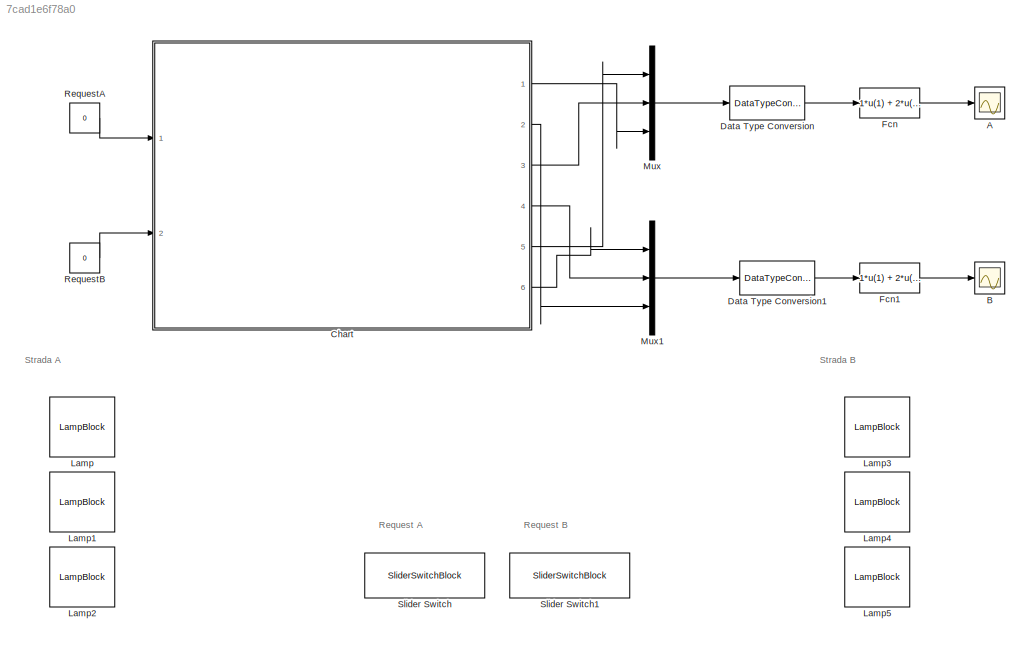
MODEL slx_7cad1e6f78a0
KIND model
CONFIG AbsTol = auto
CONFIG EnableMultiTasking = off
CONFIG FixedStep = 1
CONFIG MaxStep = auto
CONFIG MinStep = auto
CONFIG RelTol = 1e-3
CONFIG SampleTimeConstraint = Unconstrained
CONFIG Solver = FixedStepAuto
CONFIG SolverName = FixedStepAuto
CONFIG StartTime = 0.0
CONFIG StopTime = inf
BLOCK [Scope] A
  Floating = off
  NumInputPorts = 1
  Ports = [1]
  ScopeSpecificationString = Simulink.scopes.TimeScopeBlockCfg('CurrentConfiguration', extmgr.ConfigurationSet(extmgr.Configuration('Core','General UI',true),extmgr.Configuration('Core','Source UI',true),extmgr.Configuration('Sources','WiredSimulink',true),extmgr.Configuration('Visuals','Time Domain',true,'SerializedDisplays',{struct('MinYLimReal','0','MaxYLimReal','4','YLabelReal','','MinYLimMag','0.9','MaxYLimMag','1.1','Le...<+1329ch>
BLOCK [Scope] B
  Floating = off
  NumInputPorts = 1
  Ports = [1]
  ScopeSpecificationString = Simulink.scopes.TimeScopeBlockCfg('CurrentConfiguration', extmgr.ConfigurationSet(extmgr.Configuration('Core','General UI',true),extmgr.Configuration('Core','Source UI',true),extmgr.Configuration('Sources','WiredSimulink',true,'DataLoggingVariableName','ScopeData1'),extmgr.Configuration('Visuals','Time Domain',true,'SerializedDisplays',{struct('MinYLimReal','0','MaxYLimReal','4','YLabelReal','','M...<+1379ch>
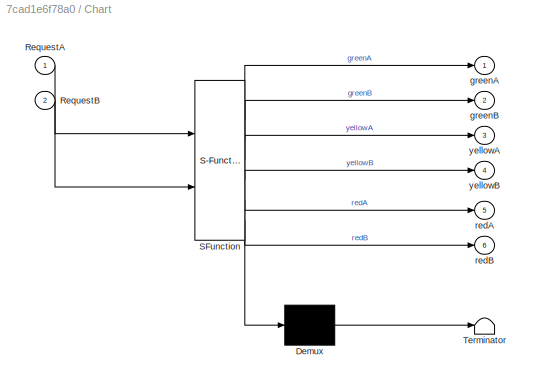
BLOCK [SubSystem] Chart
  BlockKeywords = __PRM__SERIALIZED__DATA__:Stateflow Chart,Stateflow Diagram
  ErrorFcn = Stateflow.Translate.translate
  PermitHierarchicalResolution = ExplicitOnly
  Ports = [2, 6]
  RequestExecContextInheritance = off
  SFBlockType = Chart
  TreatAsAtomicUnit = on
BLOCK [Demux] Chart/ Demux 
  Outputs = 1
  Ports = [1, 1]
BLOCK [S-Function] Chart/ SFunction 
  EnableBusSupport = on
  FunctionName = sf_sfun
  PortCounts = [2 7]
  Ports = [2, 7]
  SFcnIsStateOwnerBlock = off
  SFunctionDeploymentMode = off
  Tag = Stateflow S-Function ex_3 3
BLOCK [Terminator] Chart/ Terminator 
BLOCK [Inport] Chart/RequestA
  IconDisplay = Port number
BLOCK [Inport] Chart/RequestB
  IconDisplay = Port number
  Port = 2
BLOCK [Outport] Chart/greenA
  IconDisplay = Port number
BLOCK [Outport] Chart/greenB
  IconDisplay = Port number
  Port = 2
BLOCK [Outport] Chart/redA
  IconDisplay = Port number
  Port = 5
BLOCK [Outport] Chart/redB
  IconDisplay = Port number
  Port = 6
BLOCK [Outport] Chart/yellowA
  IconDisplay = Port number
  Port = 3
BLOCK [Outport] Chart/yellowB
  IconDisplay = Port number
  Port = 4
BLOCK [DataTypeConversion] Data Type Conversion
  RndMeth = Floor
  SaturateOnIntegerOverflow = off
BLOCK [DataTypeConversion] Data Type Conversion1
  RndMeth = Floor
  SaturateOnIntegerOverflow = off
BLOCK [Fcn] Fcn
  Expr = 1*u(1) + 2*u(2) + 3*u(3)
BLOCK [Fcn] Fcn1
  Expr = 1*u(1) + 2*u(2) + 3*u(3)
BLOCK [LampBlock] Lamp
BLOCK [LampBlock] Lamp1
BLOCK [LampBlock] Lamp2
BLOCK [LampBlock] Lamp3
BLOCK [LampBlock] Lamp4
BLOCK [LampBlock] Lamp5
BLOCK [Mux] Mux
  DisplayOption = bar
  Inputs = 3
  Ports = [3, 1]
BLOCK [Mux] Mux1
  DisplayOption = bar
  Inputs = 3
  Ports = [3, 1]
BLOCK [Constant] RequestA
  Value = 0
BLOCK [Constant] RequestB
  Value = 0
BLOCK [SliderSwitchBlock] Slider Switch
BLOCK [SliderSwitchBlock] Slider Switch1
ANNOTATION (root): Request A
ANNOTATION (root): Request B
ANNOTATION (root): Strada A
ANNOTATION (root): Strada B
LINE Chart:1 -> Mux:3
LINE Chart:2 -> Mux1:3
LINE Chart:3 -> Mux:2
LINE Chart:4 -> Mux1:2
LINE Chart:5 -> Mux:1
LINE Chart:6 -> Mux1:1
LINE Data Type Conversion1:1 -> Fcn1:1
LINE Data Type Conversion:1 -> Fcn:1
LINE Fcn1:1 -> B:1
LINE Fcn:1 -> A:1
LINE Mux1:1 -> Data Type Conversion1:1
LINE Mux:1 -> Data Type Conversion:1
LINE RequestA:1 -> Chart:1
LINE RequestB:1 -> Chart:2
CHART Chart states=10 transitions=10
  STATE_LABEL 'A'
  STATE_LABEL 'RedA\ngreenA=false;\nyellowA=false;\nredA = true;\npause(0.4);'
  STATE_LABEL 'WaitForRedB\nredRequestB = true;\npause(0.4);'
  STATE_LABEL 'GreenA\nredA=false;\nyellowA=false;\ngreenA=true;\nredRequestB=false;\npause(0.4);\n'
  STATE_LABEL 'YellowA\nredA=false;\nyellowA=true;\ngreenA=false;\npause(0.4);'
  STATE_LABEL '{redRequestA =false;redRequestB=false}'
  STATE_LABEL '[(after(40,sec)) || (after(20,sec) && RequestA == 1)]'
  STATE_LABEL '[after(5,sec)]'
  STATE_LABEL '[redB==true]'
  STATE_LABEL '[after(35,sec) || redRequestA == true]'
  STATE_LABEL 'RedA\ngreenA=false;\nyellowA=false;\nredA = true;\npause(0.4);'
  STATE_LABEL 'WaitForRedB\nredRequestB = true;\npause(0.4);'
  STATE_LABEL 'GreenA\nredA=false;\nyellowA=false;\ngreenA=true;\nredRequestB=false;\npause(0.4);\n'
  STATE_LABEL 'YellowA\nredA=false;\nyellowA=true;\ngreenA=false;\npause(0.4);'
  STATE_LABEL 'B'
  STATE_LABEL 'RedB\ngreenB=false;\nyellowB=false;\nredB=true;'
  STATE_LABEL 'WaitForRedA\nredRequestA = true;'
  STATE_LABEL 'GreenB\nredB=false;\nyellowB=false;\ngreenB=true;\nredRequestA=false;\n'
  STATE_LABEL 'YellowB\nredB=false;\nyellowB=true;\ngreenB=false;\n'
  STATE_LABEL '{redRequestA =false;redRequestB=false}'
  STATE_LABEL '[after(60,sec) || (after(40,sec) && RequestB == 1)]'
  STATE_LABEL '[redA == true]'
  STATE_LABEL '[after(5,sec)]'
  STATE_LABEL '[after(35,sec) || redRequestB == true]'
  STATE_LABEL 'RedB\ngreenB=false;\nyellowB=false;\nredB=true;'
  STATE_LABEL 'WaitForRedA\nredRequestA = true;'
  STATE_LABEL 'GreenB\nredB=false;\nyellowB=false;\ngreenB=true;\nredRequestA=false;\n'
  STATE_LABEL 'YellowB\nredB=false;\nyellowB=true;\ngreenB=false;\n'
